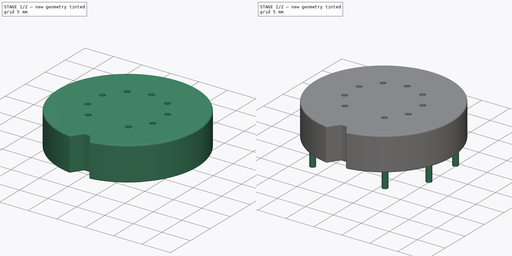
[diagram: build sequence overview — one tinted view per stage of 2, left to right]
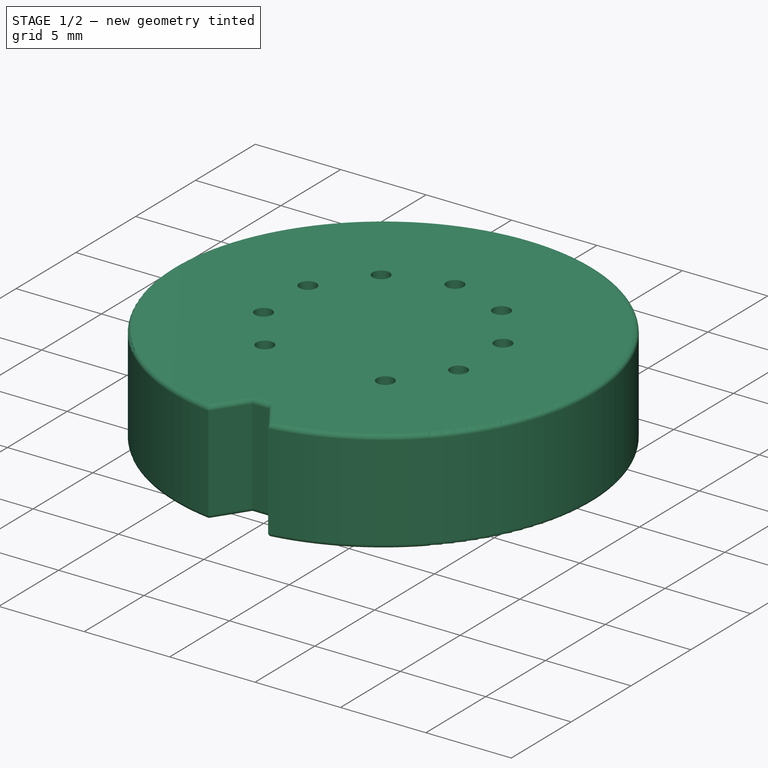
[diagram: stage 1 of 2 — iso view after this stage's code; geometry added in this stage tinted green]
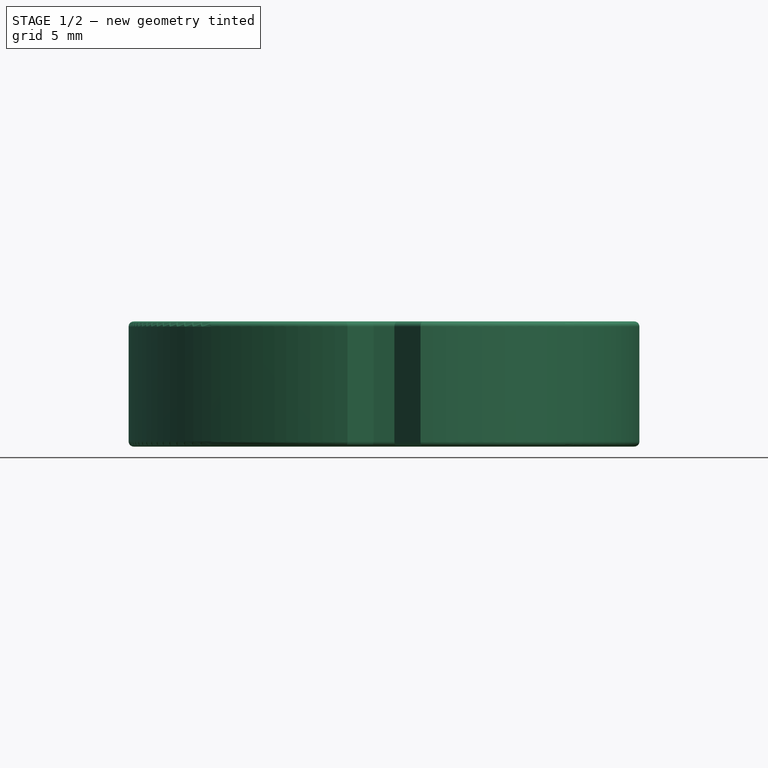
[diagram: stage 1 of 2 — front view after this stage's code; geometry added in this stage tinted green]
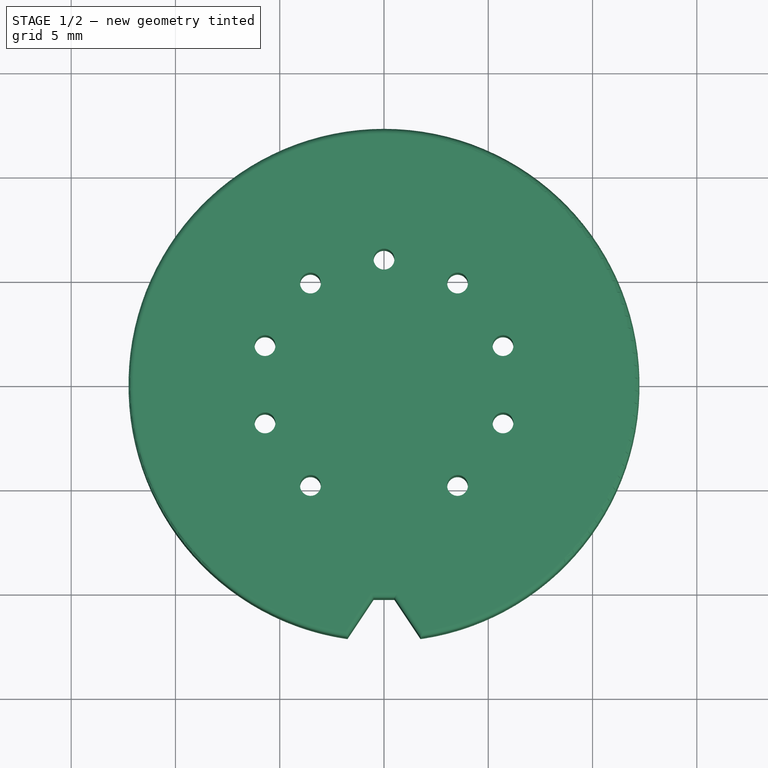
[diagram: stage 1 of 2 — top view after this stage's code; geometry added in this stage tinted green]
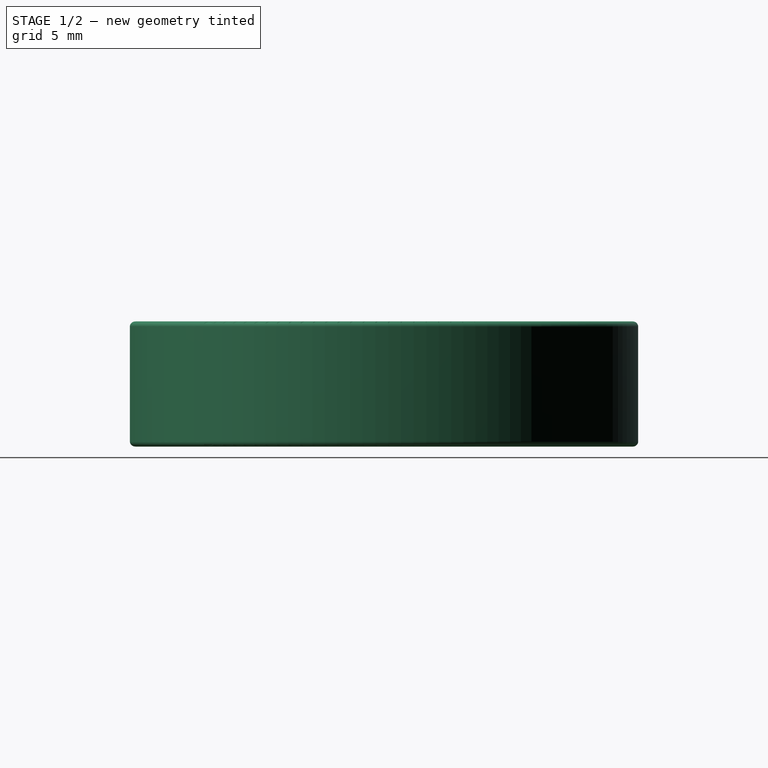
[diagram: stage 1 of 2 — right view after this stage's code; geometry added in this stage tinted green]
FCSTD DOCUMENT  (FreeCAD 0.19R)
Label: 9-pin socket
License: All rights reserved
LicenseURL: http://en.wikipedia.org/wiki/All_rights_reserved
objects: Sketcher::SketchObject×2, PartDesign::Pad×2, PartDesign::Fillet×2, PartDesign::Body×1
note: 11 computed .brp shape members not serialized (recipe doc carries the construction recipe); baked Part::Feature solids carry a one-line shape summary decoded from their .brp

FEATURE [Sketcher::SketchObject] Sketch
  FullyConstrained = true
  MapMode = 5
  Support = -> [XY_Plane]
  sketch-geometry (23):
    g0: ArcOfCircle CenterX=0 CenterY=0 CenterZ=0 NormalX=0 NormalY=0 NormalZ=1 AngleXU=0 Radius=12.25 StartAngle=4.85574 EndAngle=10.8522
    g1: LineSegment StartX=-0.5 StartY=-10.25 StartZ=0 EndX=0.5 EndY=-10.25 EndZ=0
    g2: LineSegment StartX=0.5 StartY=-10.25 StartZ=0 EndX=1.75 EndY=-12.1244 EndZ=0
    g3: LineSegment StartX=-1.75 StartY=-12.1244 StartZ=0 EndX=-0.5 EndY=-10.25 EndZ=0
    g4: Circle CenterX=0 CenterY=0 CenterZ=0 NormalX=0 NormalY=0 NormalZ=1 AngleXU=0 Radius=6
    g5: LineSegment StartX=0 StartY=0 StartZ=0 EndX=-3.52671 EndY=-4.8541 EndZ=0
    g6: LineSegment StartX=0 StartY=0 StartZ=0 EndX=-5.70634 EndY=-1.8541 EndZ=0
    g7: LineSegment StartX=0 StartY=0 StartZ=0 EndX=-5.70634 EndY=1.8541 EndZ=0
    g8: LineSegment StartX=0 StartY=0 StartZ=0 EndX=-3.52671 EndY=4.8541 EndZ=0
    g9: LineSegment StartX=0 StartY=0 StartZ=0 EndX=0 EndY=6 EndZ=0
    g10: LineSegment StartX=0 StartY=0 StartZ=0 EndX=3.52671 EndY=4.8541 EndZ=0
    g11: LineSegment StartX=0 StartY=0 StartZ=0 EndX=5.70634 EndY=1.8541 EndZ=0
    g12: LineSegment StartX=0 StartY=0 StartZ=0 EndX=5.70634 EndY=-1.8541 EndZ=0
    g13: LineSegment StartX=0 StartY=0 StartZ=0 EndX=3.52671 EndY=-4.8541 EndZ=0
    g14: Circle CenterX=-3.52671 CenterY=-4.8541 CenterZ=0 NormalX=0 NormalY=0 NormalZ=1 AngleXU=0 Radius=0.5
    g15: Circle CenterX=-5.70634 CenterY=-1.8541 CenterZ=0 NormalX=0 NormalY=0 NormalZ=1 AngleXU=0 Radius=0.5
    g16: Circle CenterX=-5.70634 CenterY=1.8541 CenterZ=0 NormalX=0 NormalY=0 NormalZ=1 AngleXU=0 Radius=0.5
    g17: Circle CenterX=-3.52671 CenterY=4.8541 CenterZ=0 NormalX=0 NormalY=0 NormalZ=1 AngleXU=0 Radius=0.5
    g18: Circle CenterX=0 CenterY=6 CenterZ=0 NormalX=0 NormalY=0 NormalZ=1 AngleXU=0 Radius=0.5
    g19: Circle CenterX=3.52671 CenterY=4.8541 CenterZ=0 NormalX=0 NormalY=0 NormalZ=1 AngleXU=0 Radius=0.5
    g20: Circle CenterX=5.70634 CenterY=1.8541 CenterZ=0 NormalX=0 NormalY=0 NormalZ=1 AngleXU=0 Radius=0.5
    g21: Circle CenterX=5.70634 CenterY=-1.8541 CenterZ=0 NormalX=0 NormalY=0 NormalZ=1 AngleXU=0 Radius=0.5
    g22: Circle CenterX=3.52671 CenterY=-4.8541 CenterZ=0 NormalX=0 NormalY=0 NormalZ=1 AngleXU=0 Radius=0.5
  constraints (58):
    c: Coincident(g0,g-1)
    c: Coincident(g1,g2)
    c: Coincident(g2,g0)
    c: Symmetric(g1,g1,g-2)
    c: Coincident(g3,g0)
    c: Coincident(g3,g1)
    c: Symmetric(g0,g0,g-2)
    c: Diameter(g0) = 24.5
    c: DistanceX(g0,g0) = 3.5
    c: DistanceX(g1,g1) = 1
    c: DistanceY(g1,g0) = 10.25
    c: Coincident(g4,g0)
    c: Diameter(g4) = 12
    c: Coincident(g5,g0)
    c: PointOnObject(g5,g4)
    c: Coincident(g6,g0)
    c: PointOnObject(g6,g4)
    c: Coincident(g7,g0)
    c: PointOnObject(g7,g4)
    c: Coincident(g8,g0)
    c: PointOnObject(g8,g4)
    c: Coincident(g9,g0)
    c: PointOnObject(g9,g4)
    c: Coincident(g10,g0)
    c: PointOnObject(g10,g4)
    c: Coincident(g11,g0)
    c: PointOnObject(g11,g4)
    c: Coincident(g12,g0)
    c: PointOnObject(g12,g4)
    c: Coincident(g13,g0)
    c: PointOnObject(g13,g4)
    c: Angle(g13,g12) = 0.628319
    c: Angle(g12,g11) = 0.628319
    c: Angle(g11,g10) = 0.628319
    c: Angle(g10,g9) = 0.628319
    c: Angle(g9,g8) = 0.628319
    c: Angle(g8,g7) = 0.628319
    c: Angle(g7,g6) = 0.628319
    c: Angle(g6,g5) = 0.628319
    c: PointOnObject(g9,g-2)
    c: Coincident(g14,g5)
    c: Coincident(g15,g6)
    c: Coincident(g16,g7)
    c: Coincident(g17,g8)
    c: Coincident(g18,g9)
    c: Coincident(g19,g10)
    c: Coincident(g20,g11)
    c: Coincident(g21,g12)
    c: Coincident(g22,g13)
    c: Equal(g22,g21)
    c: Equal(g21,g20)
    c: Equal(g20,g19)
    c: Equal(g19,g18)
    c: Equal(g18,g17)
    c: Equal(g17,g16)
    c: Equal(g16,g15)
    c: Equal(g15,g14)
    c: Diameter(g22) = 1
FEATURE [PartDesign::Pad] Pad
  Direction = (1,1,1)
  Length = 6
  Length2 = 100
  Profile = -> Sketch
  Type = 0
FEATURE [PartDesign::Fillet] Fillet
  Base = -> Pad [Edge4,Edge12,Edge10,Edge7,Edge3,Edge6,Edge9,Edge11]
  BaseFeature = -> Pad
  Radius = 0.25
  SupportTransform = false
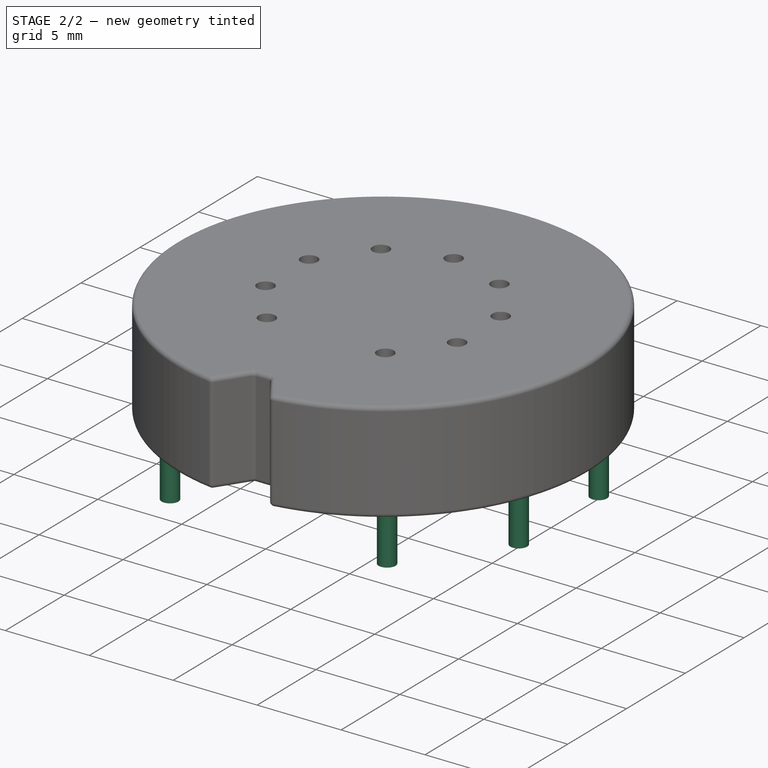
[diagram: stage 2 of 2 — iso view after this stage's code; geometry added in this stage tinted green]
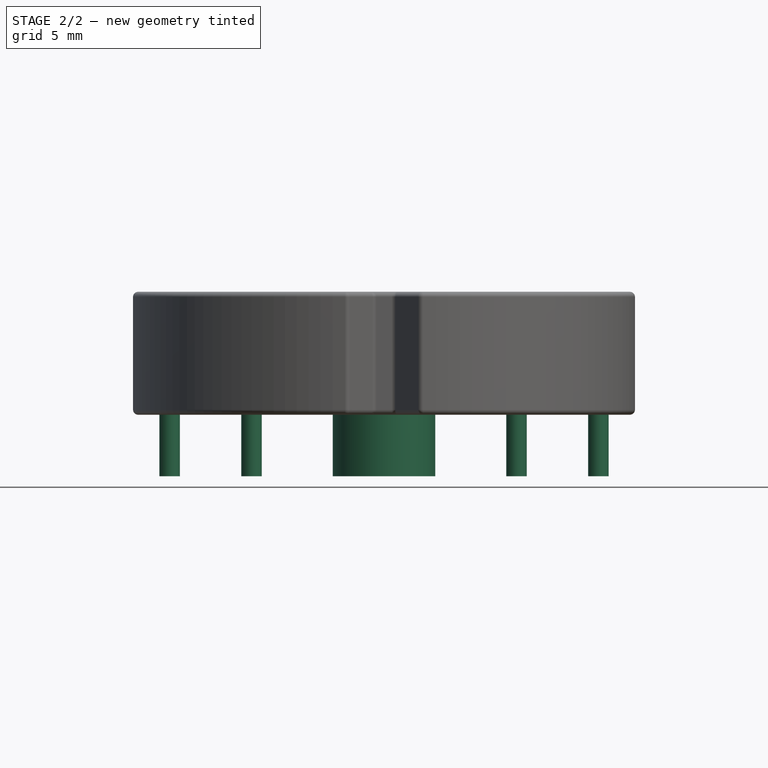
[diagram: stage 2 of 2 — front view after this stage's code; geometry added in this stage tinted green]
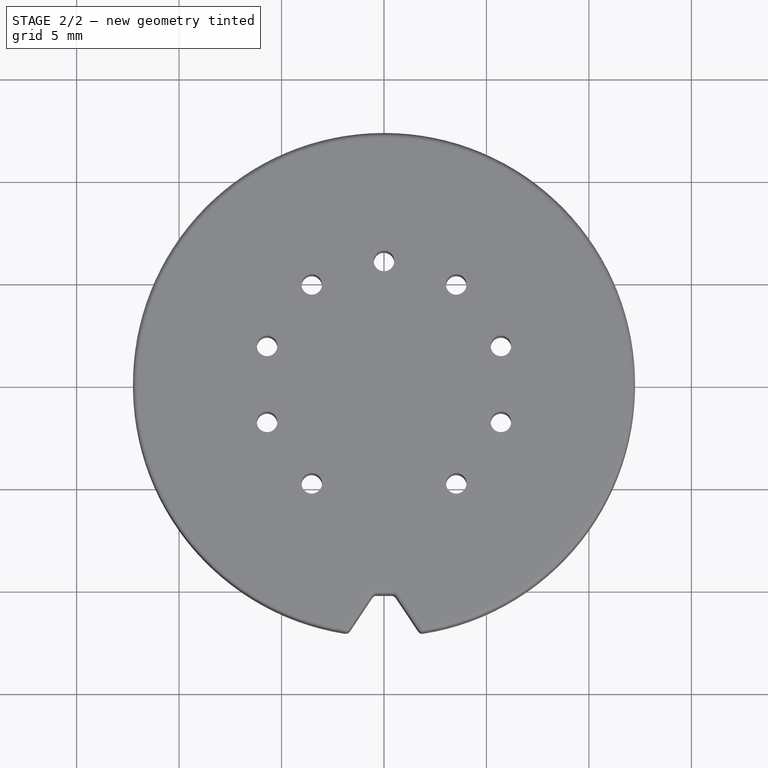
[diagram: stage 2 of 2 — top view after this stage's code; geometry added in this stage tinted green]
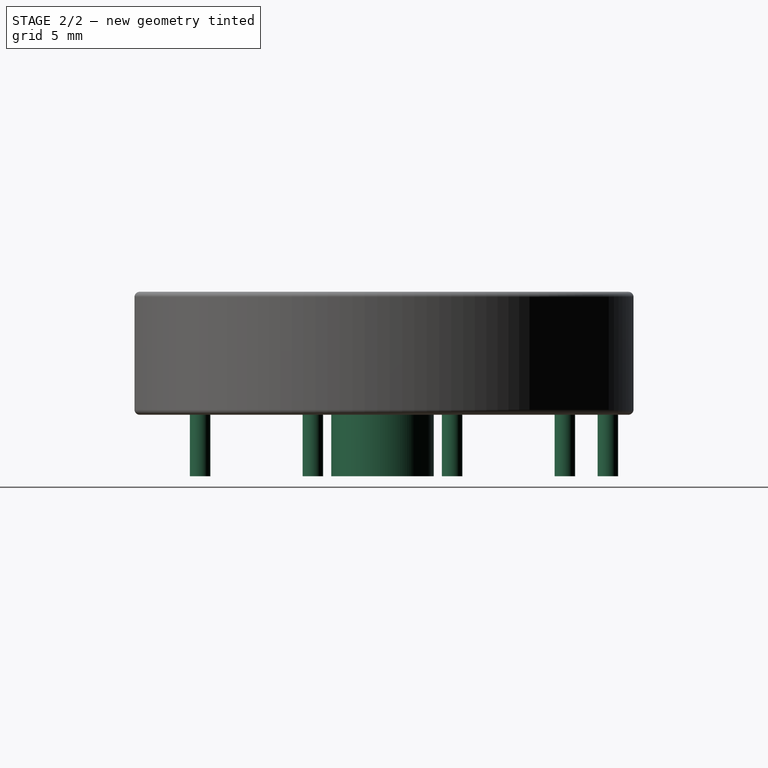
[diagram: stage 2 of 2 — right view after this stage's code; geometry added in this stage tinted green]
FEATURE [PartDesign::Fillet] Fillet001
  Base = -> Fillet [Edge4,Edge16,Edge5,Edge1]
  BaseFeature = -> Fillet
  Radius = 0.25
  SupportTransform = false
FEATURE [Sketcher::SketchObject] Sketch001
  FullyConstrained = true
  MapMode = 5
  Placement = pos=(0,0,0) rot=(1,0,0;3.14159rad)
  Support = -> [Fillet001]
  sketch-geometry (20):
    g0: Circle CenterX=0 CenterY=0 CenterZ=0 NormalX=0 NormalY=0 NormalZ=1 AngleXU=0 Radius=11
    g1: LineSegment StartX=0 StartY=0 StartZ=0 EndX=6.46564 EndY=8.89919 EndZ=0
    g2: LineSegment StartX=0 StartY=0 StartZ=0 EndX=10.4616 EndY=3.39919 EndZ=0
    g3: LineSegment StartX=0 StartY=0 StartZ=0 EndX=10.4616 EndY=-3.39919 EndZ=0
    g4: LineSegment StartX=0 StartY=0 StartZ=0 EndX=6.46564 EndY=-8.89919 EndZ=0
    g5: LineSegment StartX=0 StartY=0 StartZ=0 EndX=0 EndY=-11 EndZ=0
    g6: LineSegment StartX=0 StartY=0 StartZ=0 EndX=-6.46564 EndY=-8.89919 EndZ=0
    g7: LineSegment StartX=0 StartY=0 StartZ=0 EndX=-10.4616 EndY=-3.39919 EndZ=0
    g8: LineSegment StartX=0 StartY=0 StartZ=0 EndX=-10.4616 EndY=3.39919 EndZ=0
    g9: LineSegment StartX=0 StartY=0 StartZ=0 EndX=-6.46564 EndY=8.89919 EndZ=0
    g10: Circle CenterX=-6.46564 CenterY=8.89919 CenterZ=0 NormalX=0 NormalY=0 NormalZ=1 AngleXU=0 Radius=0.5
    g11: Circle CenterX=-10.4616 CenterY=3.39919 CenterZ=0 NormalX=0 NormalY=0 NormalZ=1 AngleXU=0 Radius=0.5
    g12: Circle CenterX=-10.4616 CenterY=-3.39919 CenterZ=0 NormalX=0 NormalY=0 NormalZ=1 AngleXU=0 Radius=0.5
    g13: Circle CenterX=-6.46564 CenterY=-8.89919 CenterZ=0 NormalX=0 NormalY=0 NormalZ=1 AngleXU=0 Radius=0.5
    g14: Circle CenterX=0 CenterY=-11 CenterZ=0 NormalX=0 NormalY=0 NormalZ=1 AngleXU=0 Radius=0.5
    g15: Circle CenterX=6.46564 CenterY=-8.89919 CenterZ=0 NormalX=0 NormalY=0 NormalZ=1 AngleXU=0 Radius=0.5
    g16: Circle CenterX=10.4616 CenterY=-3.39919 CenterZ=0 NormalX=0 NormalY=0 NormalZ=1 AngleXU=0 Radius=0.5
    g17: Circle CenterX=10.4616 CenterY=3.39919 CenterZ=0 NormalX=0 NormalY=0 NormalZ=1 AngleXU=0 Radius=0.5
    g18: Circle CenterX=6.46564 CenterY=8.89919 CenterZ=0 NormalX=0 NormalY=0 NormalZ=1 AngleXU=0 Radius=0.5
    g19: Circle CenterX=0 CenterY=0 CenterZ=0 NormalX=0 NormalY=0 NormalZ=1 AngleXU=0 Radius=2.5
  constraints (49):
    c: Coincident(g0,g-1)
    c: Coincident(g1,g-1)
    c: PointOnObject(g1,g0)
    c: Coincident(g2,g1)
    c: PointOnObject(g2,g0)
    c: Coincident(g3,g1)
    c: PointOnObject(g3,g0)
    c: Coincident(g4,g1)
    c: PointOnObject(g4,g0)
    c: Coincident(g5,g1)
    c: PointOnObject(g5,g0)
    c: Coincident(g6,g1)
    c: PointOnObject(g6,g0)
    c: Coincident(g7,g1)
    c: PointOnObject(g7,g0)
    c: Coincident(g8,g1)
    c: PointOnObject(g8,g0)
    c: Coincident(g9,g1)
    c: PointOnObject(g9,g0)
    c: Angle(g2,g1) = 0.628319
    c: Angle(g3,g2) = 0.628319
    c: Angle(g4,g3) = 0.628319
    c: Angle(g5,g4) = 0.628319
    c: Angle(g6,g5) = 0.628319
    c: Angle(g7,g6) = 0.628319
    c: Angle(g8,g7) = 0.628319
    c: Angle(g9,g8) = 0.628319
    c: PointOnObject(g5,g-2)
    c: Coincident(g10,g9)
    c: Coincident(g11,g8)
    c: Coincident(g12,g7)
    c: Coincident(g13,g6)
    c: Coincident(g14,g5)
    c: Coincident(g15,g4)
    c: Coincident(g16,g3)
    c: Coincident(g17,g2)
    c: Coincident(g18,g1)
    c: Equal(g10,g11)
    c: Equal(g11,g12)
    c: Equal(g12,g13)
    c: Equal(g13,g14)
    c: Equal(g14,g15)
    c: Equal(g15,g16)
    c: Equal(g16,g17)
    c: Equal(g17,g18)
    c: Diameter(g18) = 1
    c: Diameter(g0) = 22
    c: Coincident(g19,g-1)
    c: Diameter(g19) = 5
FEATURE [PartDesign::Pad] Pad001
  BaseFeature = -> Fillet001
  Direction = (1,1,1)
  Length = 3
  Length2 = 100
  Profile = -> Sketch001
  Type = 0
FEATURE [PartDesign::Body] Body
  Group = -> [Sketch,Pad,Fillet,Fillet001,Sketch001,Pad001]
  Origin = -> Origin
  Tip = -> Pad001
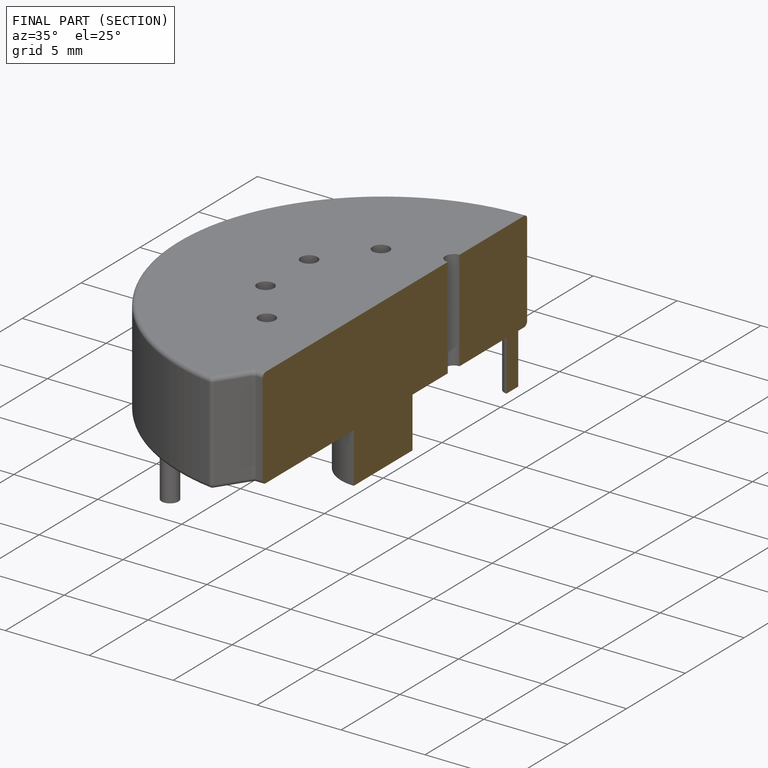
[diagram: finished part — half-section view (interior)]
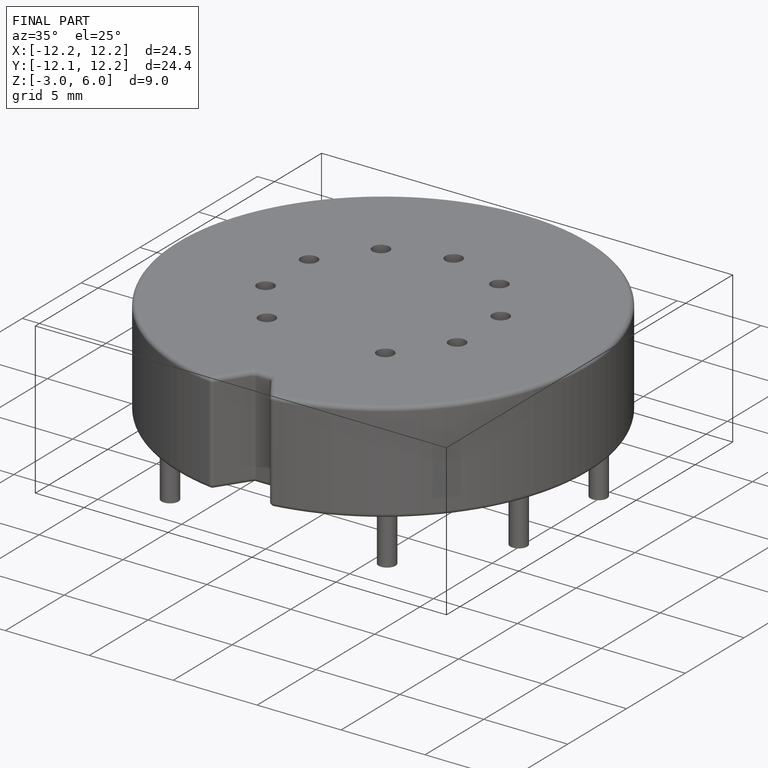
[diagram: finished part — iso view with bounding-box wireframe]
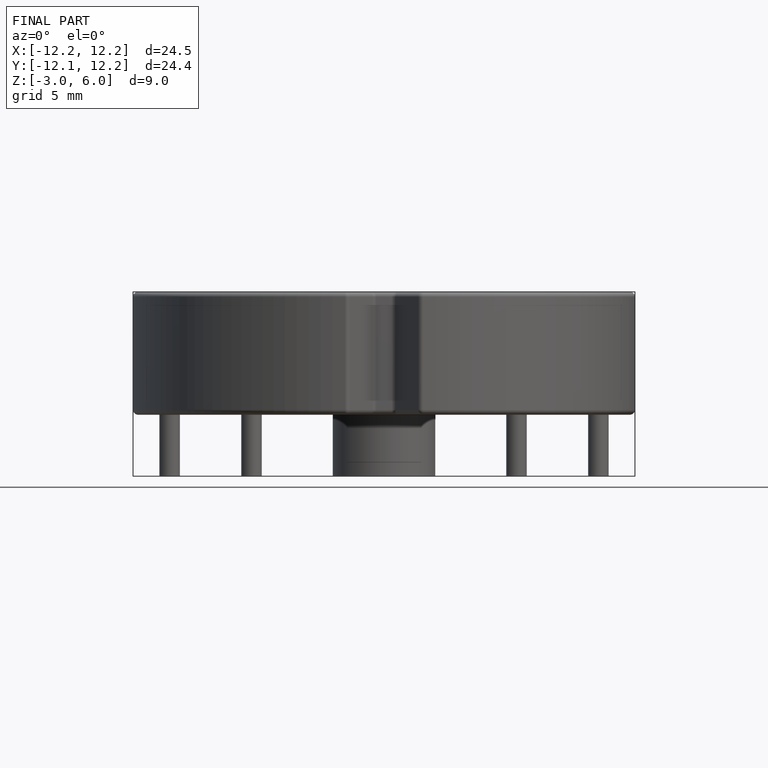
[diagram: finished part — front view with bounding-box wireframe]
